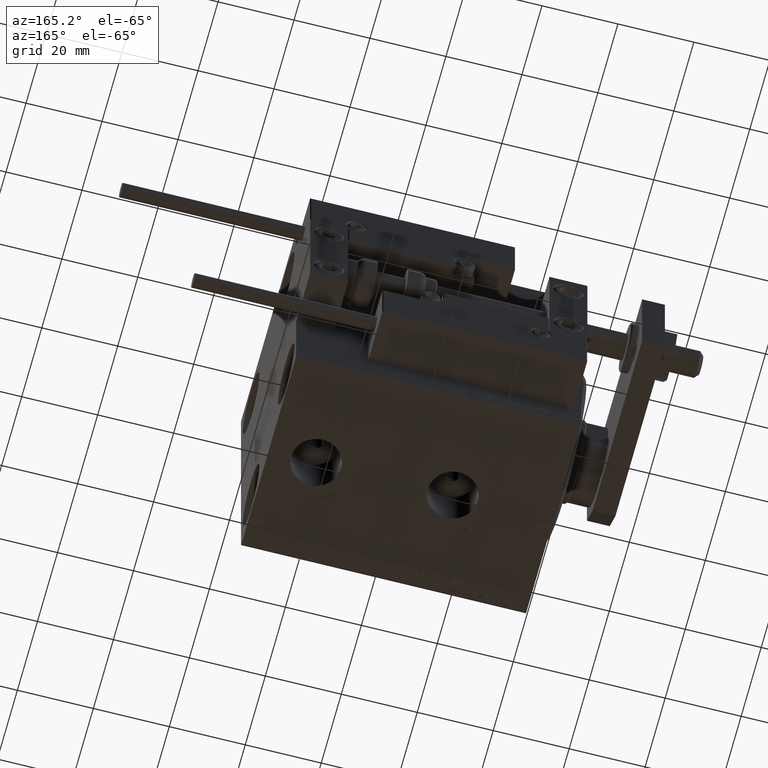
[diagram: clean part render]
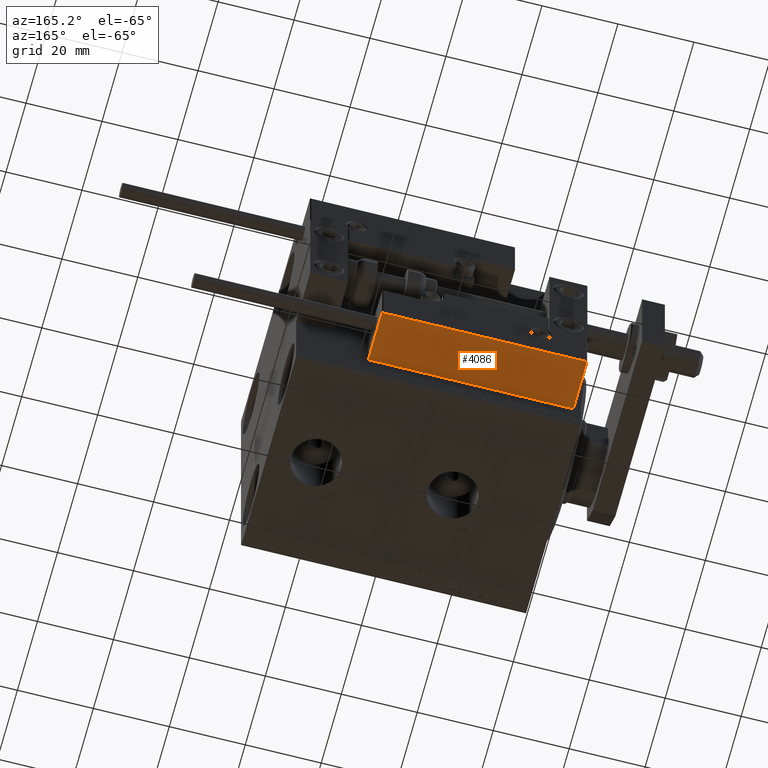
[diagram: same view with one face highlighted and labeled with its STEP entity id]
A machine part, auxiliary view. The second image highlights one B-rep face of the part: STEP entity #4086.
In plain terms, the highlighted planar face has unit normal (0, 0, 1).
Its self-contained STEP definition (entity closure, byte-faithful):
#620 = VECTOR ( 'NONE', #38446, 1000.000000000000000 ) ;
#1401 = EDGE_CURVE ( 'NONE', #8684, #46098, #35144, .T. ) ;
#2224 = ORIENTED_EDGE ( 'NONE', *, *, #34071, .T. ) ;
#3558 = PLANE ( 'NONE',  #46044 ) ;
#4086 = ADVANCED_FACE ( 'NONE', ( #19187 ), #3558, .F. ) ;
#4357 = CARTESIAN_POINT ( 'NONE',  ( 27.00000000000006395, 20.00000000000001776, 13.70000000000000107 ) ) ;
#8684 = VERTEX_POINT ( 'NONE', #27659 ) ;
#8692 = CARTESIAN_POINT ( 'NONE',  ( -26.99999999999993605, 20.00000000000002132, 13.70000000000000107 ) ) ;
#15680 = LINE ( 'NONE', #38867, #16432 ) ;
#16236 = CARTESIAN_POINT ( 'NONE',  ( 27.00000000000006395, 20.00000000000001776, 0.000000000000000000 ) ) ;
#16432 = VECTOR ( 'NONE', #32051, 1000.000000000000000 ) ;
#16572 = VERTEX_POINT ( 'NONE', #8692 ) ;
#19018 = CARTESIAN_POINT ( 'NONE',  ( 27.00000000000006395, 20.00000000000001776, 14.00000000000000000 ) ) ;
#19187 = FACE_OUTER_BOUND ( 'NONE', #22357, .T. ) ;
#19434 = CARTESIAN_POINT ( 'NONE',  ( 27.00000000000006395, 20.00000000000001776, 14.00000000000000000 ) ) ;
#22357 = EDGE_LOOP ( 'NONE', ( #30367, #38868, #38669, #2224 ) ) ;
#22560 = LINE ( 'NONE', #42646, #620 ) ;
#24666 = CARTESIAN_POINT ( 'NONE',  ( -26.99999999999993605, 20.00000000000002132, 0.000000000000000000 ) ) ;
#27001 = DIRECTION ( 'NONE',  ( -6.424901762877063495E-17, -1.000000000000000000, 0.000000000000000000 ) ) ;
#27659 = CARTESIAN_POINT ( 'NONE',  ( 27.00000000000006395, 20.00000000000001776, 13.70000000000000107 ) ) ;
#30367 = ORIENTED_EDGE ( 'NONE', *, *, #51426, .F. ) ;
#31745 = VECTOR ( 'NONE', #43743, 1000.000000000000000 ) ;
#32051 = DIRECTION ( 'NONE',  ( -0.000000000000000000, -0.000000000000000000, -1.000000000000000000 ) ) ;
#34071 = EDGE_CURVE ( 'NONE', #46098, #43761, #22560, .T. ) ;
#35144 = LINE ( 'NONE', #19018, #31745 ) ;
#36647 = LINE ( 'NONE', #4357, #40369 ) ;
#38446 = DIRECTION ( 'NONE',  ( -1.000000000000000000, 6.424901762877062263E-17, 0.000000000000000000 ) ) ;
#38669 = ORIENTED_EDGE ( 'NONE', *, *, #1401, .T. ) ;
#38867 = CARTESIAN_POINT ( 'NONE',  ( -26.99999999999993605, 20.00000000000002132, 14.00000000000000000 ) ) ;
#38868 = ORIENTED_EDGE ( 'NONE', *, *, #46945, .T. ) ;
#40369 = VECTOR ( 'NONE', #44228, 1000.000000000000000 ) ;
#42646 = CARTESIAN_POINT ( 'NONE',  ( 27.00000000000006395, 20.00000000000001776, 0.000000000000000000 ) ) ;
#43743 = DIRECTION ( 'NONE',  ( -0.000000000000000000, -0.000000000000000000, -1.000000000000000000 ) ) ;
#43761 = VERTEX_POINT ( 'NONE', #24666 ) ;
#44228 = DIRECTION ( 'NONE',  ( 1.000000000000000000, -6.424901762877063495E-17, -0.000000000000000000 ) ) ;
#46044 = AXIS2_PLACEMENT_3D ( 'NONE', #19434, #27001, #46065 ) ;
#46065 = DIRECTION ( 'NONE',  ( 1.000000000000000000, -6.424901762877063495E-17, 0.000000000000000000 ) ) ;
#46098 = VERTEX_POINT ( 'NONE', #16236 ) ;
#46945 = EDGE_CURVE ( 'NONE', #16572, #8684, #36647, .T. ) ;
#51426 = EDGE_CURVE ( 'NONE', #16572, #43761, #15680, .T. ) ;